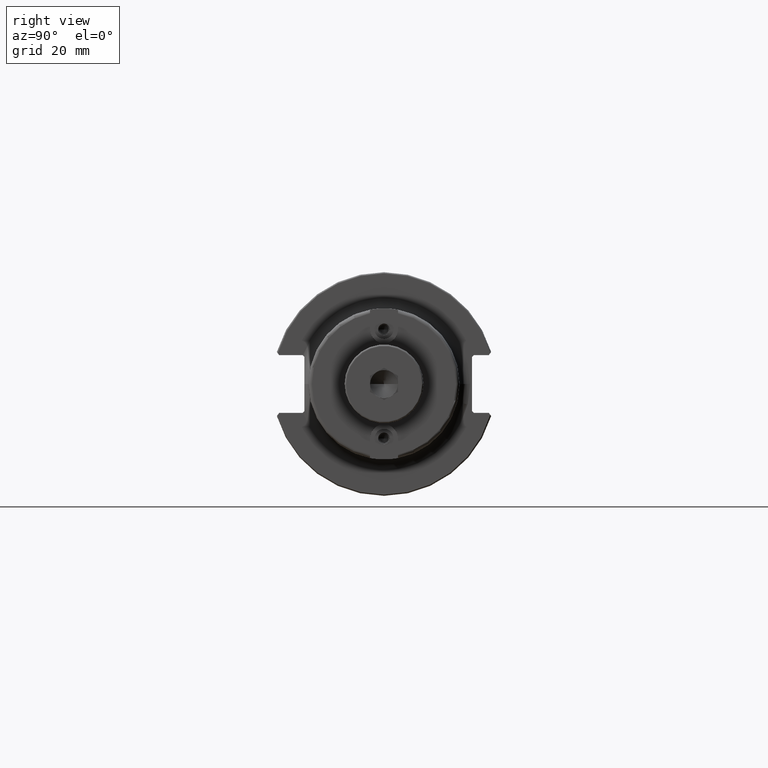
[diagram: clean part render]
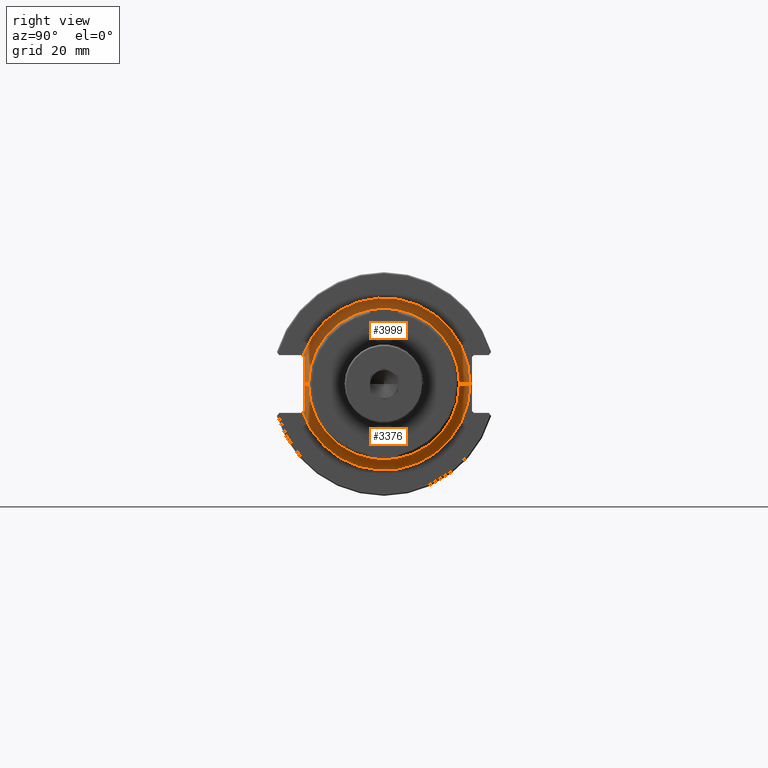
[diagram: same view with one multi-face feature highlighted, each face labeled with its STEP entity id]
A machine part, right view. The highlighted faces form ONE feature: a constant-radius fillet chain: 2 tangent blend faces with common blend radius 2.9972 mm. The faces share edges in the B-rep.
Their STEP definitions:
[1] entity #3376 (Torus):
#694=CARTESIAN_POINT('',(7.509842519685E-1,0.E0,0.E0));
#695=DIRECTION('',(1.E0,0.E0,0.E0));
#696=DIRECTION('',(0.E0,-9.429949431790E-1,-3.328070569247E-1));
#697=AXIS2_PLACEMENT_3D('',#694,#695,#696);
#704=CARTESIAN_POINT('',(7.530794966055E-1,-8.897637795276E-1,
-3.027559055118E-1));
#705=CARTESIAN_POINT('',(7.524202293631E-1,-8.924841272883E-1,
-3.054762532726E-1));
#706=CARTESIAN_POINT('',(7.513762368625E-1,-8.980975765949E-1,
-3.110882319327E-1));
#707=CARTESIAN_POINT('',(7.509842519685E-1,-9.040835964225E-1,
-3.170786636996E-1));
#708=CARTESIAN_POINT('',(7.509842519685E-1,-9.071652792018E-1,
-3.201603464789E-1));
#710=CARTESIAN_POINT('',(7.756786870117E-1,-8.897637795276E-1,
8.277420098499E-7));
#711=CARTESIAN_POINT('',(7.756787042729E-1,-8.897637795276E-1,
-2.396563878975E-2));
#712=CARTESIAN_POINT('',(7.741584522820E-1,-8.897637795276E-1,
-7.284170122322E-2));
#713=CARTESIAN_POINT('',(7.672744875958E-1,-8.897637795276E-1,
-1.519185922259E-1));
#714=CARTESIAN_POINT('',(7.590523339877E-1,-8.897637795276E-1,
-2.279637542568E-1));
#715=CARTESIAN_POINT('',(7.546035503852E-1,-8.897637795276E-1,
-2.779853266792E-1));
#716=CARTESIAN_POINT('',(7.530794966055E-1,-8.897637795276E-1,
-3.027559055118E-1));
#718=CARTESIAN_POINT('',(8.689842519685E-1,-9.619999999996E-1,
8.949429412218E-7));
#719=DIRECTION('',(0.E0,-9.302941176945E-7,-9.999999999996E-1));
#720=DIRECTION('',(-7.907251267528E-1,6.121713599324E-1,-5.694994151664E-7));
#721=AXIS2_PLACEMENT_3D('',#718,#719,#720);
#750=CARTESIAN_POINT('',(8.689842519685E-1,0.E0,0.E0));
#751=DIRECTION('',(1.E0,0.E0,0.E0));
#752=DIRECTION('',(0.E0,-1.E0,0.E0));
#753=AXIS2_PLACEMENT_3D('',#750,#751,#752);
#1155=CARTESIAN_POINT('',(8.689842519685E-1,9.62E-1,-1.765410734267E-13));
#1156=DIRECTION('',(0.E0,1.835146618001E-13,1.E0));
#1157=DIRECTION('',(-1.E0,-6.087409296038E-13,0.E0));
#1158=AXIS2_PLACEMENT_3D('',#1155,#1156,#1157);
#2550=VERTEX_POINT('',#710);
#2551=VERTEX_POINT('',#716);
#2553=CARTESIAN_POINT('',(8.689842519685E-1,-8.44E-1,0.E0));
#2554=CARTESIAN_POINT('',(8.689842519685E-1,8.44E-1,0.E0));
#2555=VERTEX_POINT('',#2553);
#2556=VERTEX_POINT('',#2554);
#2557=CARTESIAN_POINT('',(7.509842519685E-1,-9.071611353382E-1,
-3.201603887615E-1));
#2558=CARTESIAN_POINT('',(7.509842519685E-1,9.62E-1,0.E0));
#2559=VERTEX_POINT('',#2557);
#2560=VERTEX_POINT('',#2558);
#3358=CARTESIAN_POINT('',(8.689842519685E-1,0.E0,0.E0));
#3359=DIRECTION('',(1.E0,0.E0,0.E0));
#3360=DIRECTION('',(0.E0,-1.485959642860E-3,9.999988959614E-1));
#3361=AXIS2_PLACEMENT_3D('',#3358,#3359,#3360);
#3362=TOROIDAL_SURFACE('',#3361,9.62E-1,1.18E-1);
#3364=ORIENTED_EDGE('',*,*,#3363,.T.);
#3366=ORIENTED_EDGE('',*,*,#3365,.F.);
#3367=ORIENTED_EDGE('',*,*,#3322,.F.);
#3369=ORIENTED_EDGE('',*,*,#3368,.F.);
#3371=ORIENTED_EDGE('',*,*,#3370,.F.);
#3373=ORIENTED_EDGE('',*,*,#3372,.T.);
#3374=EDGE_LOOP('',(#3364,#3366,#3367,#3369,#3371,#3373));
#3375=FACE_OUTER_BOUND('',#3374,.F.);
#3376=ADVANCED_FACE('',(#3375),#3362,.F.);
#698=CIRCLE('',#697,9.62E-1);
#709=B_SPLINE_CURVE_WITH_KNOTS('',3,(#704,#705,#706,#707,#708),.UNSPECIFIED.,
.F.,.F.,(4,1,4),(0.E0,5.E-1,1.E0),.UNSPECIFIED.);
#717=B_SPLINE_CURVE_WITH_KNOTS('',3,(#710,#711,#712,#713,#714,#715,#716),
.UNSPECIFIED.,.F.,.F.,(4,1,1,1,4),(0.E0,2.5E-1,5.E-1,7.5E-1,1.E0),
.UNSPECIFIED.);
#722=CIRCLE('',#721,1.18E-1);
#754=CIRCLE('',#753,8.44E-1);
#1159=CIRCLE('',#1158,1.18E-1);
#3322=EDGE_CURVE('',#2559,#2560,#698,.T.);
#3363=EDGE_CURVE('',#2555,#2556,#754,.T.);
#3365=EDGE_CURVE('',#2560,#2556,#1159,.T.);
#3368=EDGE_CURVE('',#2551,#2559,#709,.T.);
#3370=EDGE_CURVE('',#2550,#2551,#717,.T.);
#3372=EDGE_CURVE('',#2550,#2555,#722,.T.);
[2] entity #3999 (Torus):
#699=CARTESIAN_POINT('',(7.509842519685E-1,0.E0,0.E0));
#700=DIRECTION('',(1.E0,0.E0,0.E0));
#701=DIRECTION('',(0.E0,1.E0,0.E0));
#702=AXIS2_PLACEMENT_3D('',#699,#700,#701);
#710=CARTESIAN_POINT('',(7.756786870117E-1,-8.897637795276E-1,
8.277420098499E-7));
#718=CARTESIAN_POINT('',(8.689842519685E-1,-9.619999999996E-1,
8.949429412218E-7));
#719=DIRECTION('',(0.E0,-9.302941176945E-7,-9.999999999996E-1));
#720=DIRECTION('',(-7.907251267528E-1,6.121713599324E-1,-5.694994151664E-7));
#721=AXIS2_PLACEMENT_3D('',#718,#719,#720);
#1132=CARTESIAN_POINT('',(8.689842519685E-1,0.E0,0.E0));
#1133=DIRECTION('',(1.E0,0.E0,0.E0));
#1134=DIRECTION('',(0.E0,1.E0,0.E0));
#1135=AXIS2_PLACEMENT_3D('',#1132,#1133,#1134);
#1155=CARTESIAN_POINT('',(8.689842519685E-1,9.62E-1,-1.765410734267E-13));
#1156=DIRECTION('',(0.E0,1.835146618001E-13,1.E0));
#1157=DIRECTION('',(-1.E0,-6.087409296038E-13,0.E0));
#1158=AXIS2_PLACEMENT_3D('',#1155,#1156,#1157);
#1160=CARTESIAN_POINT('',(7.530794966055E-1,-8.897637795276E-1,
3.027559055118E-1));
#1161=CARTESIAN_POINT('',(7.546030023371E-1,-8.897637795276E-1,
2.779942341532E-1));
#1162=CARTESIAN_POINT('',(7.590503502420E-1,-8.897637795276E-1,
2.279817735003E-1));
#1163=CARTESIAN_POINT('',(7.672725559327E-1,-8.897637795276E-1,
1.519406503249E-1));
#1164=CARTESIAN_POINT('',(7.741609106490E-1,-8.897637795276E-1,
7.280957395476E-2));
#1165=CARTESIAN_POINT('',(7.756786697614E-1,-8.897637795276E-1,
2.395210567421E-2));
#1166=CARTESIAN_POINT('',(7.756786870117E-1,-8.897637795276E-1,
8.277420098499E-7));
#1168=CARTESIAN_POINT('',(7.509842519685E-1,-9.071661775946E-1,
3.201645039287E-1));
#1169=CARTESIAN_POINT('',(7.509842519685E-1,-9.040851464406E-1,
3.170834727747E-1));
#1170=CARTESIAN_POINT('',(7.513760726951E-1,-8.980984346629E-1,
3.110874604722E-1));
#1171=CARTESIAN_POINT('',(7.524200737733E-1,-8.924847693017E-1,
3.054768952860E-1));
#1172=CARTESIAN_POINT('',(7.530794966055E-1,-8.897637795276E-1,
3.027559055118E-1));
#2550=VERTEX_POINT('',#710);
#2552=VERTEX_POINT('',#1160);
#2553=CARTESIAN_POINT('',(8.689842519685E-1,-8.44E-1,0.E0));
#2554=CARTESIAN_POINT('',(8.689842519685E-1,8.44E-1,0.E0));
#2555=VERTEX_POINT('',#2553);
#2556=VERTEX_POINT('',#2554);
#2558=CARTESIAN_POINT('',(7.509842519685E-1,9.62E-1,0.E0));
#2560=VERTEX_POINT('',#2558);
#2561=CARTESIAN_POINT('',(7.509842519685E-1,-9.071600700851E-1,
3.201634070957E-1));
#2562=VERTEX_POINT('',#2561);
#3984=CARTESIAN_POINT('',(8.689842519685E-1,0.E0,0.E0));
#3985=DIRECTION('',(1.E0,0.E0,0.E0));
#3986=DIRECTION('',(0.E0,9.999011879166E-1,-1.405753900728E-2));
#3987=AXIS2_PLACEMENT_3D('',#3984,#3985,#3986);
#3988=TOROIDAL_SURFACE('',#3987,9.62E-1,1.18E-1);
#3989=ORIENTED_EDGE('',*,*,#3324,.F.);
#3990=ORIENTED_EDGE('',*,*,#3365,.T.);
#3991=ORIENTED_EDGE('',*,*,#3971,.T.);
#3992=ORIENTED_EDGE('',*,*,#3372,.F.);
#3994=ORIENTED_EDGE('',*,*,#3993,.F.);
#3996=ORIENTED_EDGE('',*,*,#3995,.F.);
#3997=EDGE_LOOP('',(#3989,#3990,#3991,#3992,#3994,#3996));
#3998=FACE_OUTER_BOUND('',#3997,.F.);
#3999=ADVANCED_FACE('',(#3998),#3988,.F.);
#703=CIRCLE('',#702,9.62E-1);
#722=CIRCLE('',#721,1.18E-1);
#1136=CIRCLE('',#1135,8.44E-1);
#1159=CIRCLE('',#1158,1.18E-1);
#1167=B_SPLINE_CURVE_WITH_KNOTS('',3,(#1160,#1161,#1162,#1163,#1164,#1165,
#1166),.UNSPECIFIED.,.F.,.F.,(4,1,1,1,4),(0.E0,2.5E-1,5.E-1,7.5E-1,1.E0),
.UNSPECIFIED.);
#1173=B_SPLINE_CURVE_WITH_KNOTS('',3,(#1168,#1169,#1170,#1171,#1172),
.UNSPECIFIED.,.F.,.F.,(4,1,4),(0.E0,5.E-1,1.E0),.UNSPECIFIED.);
#3324=EDGE_CURVE('',#2560,#2562,#703,.T.);
#3365=EDGE_CURVE('',#2560,#2556,#1159,.T.);
#3372=EDGE_CURVE('',#2550,#2555,#722,.T.);
#3971=EDGE_CURVE('',#2556,#2555,#1136,.T.);
#3993=EDGE_CURVE('',#2552,#2550,#1167,.T.);
#3995=EDGE_CURVE('',#2562,#2552,#1173,.T.);